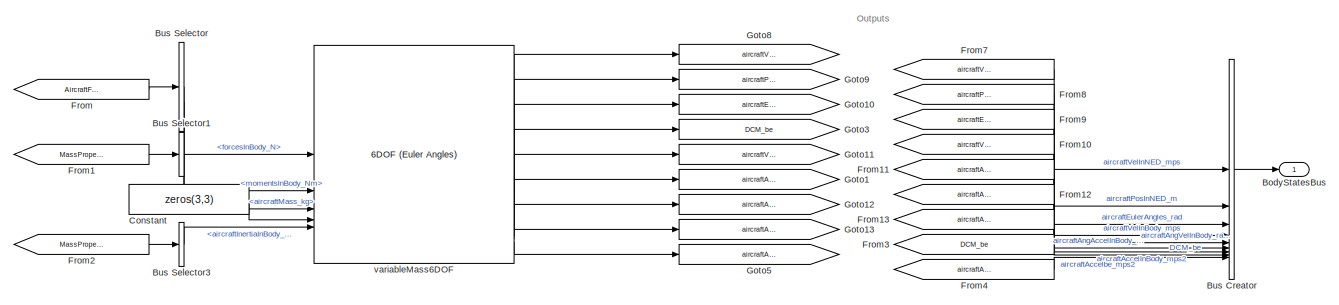
[diagram: root canvas - part 1/2, most of the canvas]
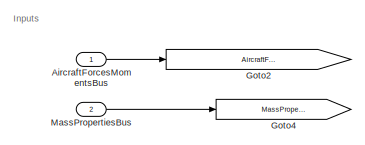
[diagram: root canvas - part 2/2, middle left region]
MODEL slx_60d40bf26ebe
KIND model
BLOCK [Inport] AircraftForcesMomentsBus
  OutDataTypeStr = Bus: AircraftForcesMomentsBus
BLOCK [Outport] BodyStatesBus
  OutDataTypeStr = Bus: BodyStateBus
BLOCK [BusCreator] Bus Creator
  DisplayOption = bar
  InheritFromInputs = on
  Inputs = 9
BLOCK [BusSelector] Bus Selector
  OutputSignals = forcesInBody_N,momentsInBody_Nm
BLOCK [BusSelector] Bus Selector1
  OutputSignals = aircraftMass_kg
BLOCK [BusSelector] Bus Selector3
  OutputSignals = aircraftInertiaInBody_kgm2
BLOCK [Constant] Constant
  Value = zeros(3,3)
BLOCK [From] From
  GotoTag = AircraftForcesMomentsBus
BLOCK [From] From1
  GotoTag = MassPropertiesBus
BLOCK [From] From10
  GotoTag = aircraftVelInBody_mps
BLOCK [From] From11
  GotoTag = aircraftAngVelInBody_radps
BLOCK [From] From12
  GotoTag = aircraftAngAccelInBody_radps2
BLOCK [From] From13
  GotoTag = aircraftAccelInBody_mps2
BLOCK [From] From2
  GotoTag = MassPropertiesBus
BLOCK [From] From3
  GotoTag = DCM_be
BLOCK [From] From4
  GotoTag = aircraftAccelbe_mps2
BLOCK [From] From7
  GotoTag = aircraftVelInNED_mps
BLOCK [From] From8
  GotoTag = aircraftPosInNED_m
BLOCK [From] From9
  GotoTag = aircraftEulerAngles_rad
BLOCK [Goto] Goto1
  GotoTag = aircraftAngVelInBody_radps
BLOCK [Goto] Goto10
  GotoTag = aircraftEulerAngles_rad
BLOCK [Goto] Goto11
  GotoTag = aircraftVelInBody_mps
BLOCK [Goto] Goto12
  GotoTag = aircraftAngAccelInBody_radps2
BLOCK [Goto] Goto13
  GotoTag = aircraftAccelInBody_mps2
BLOCK [Goto] Goto2
  GotoTag = AircraftForcesMomentsBus
BLOCK [Goto] Goto3
  GotoTag = DCM_be
BLOCK [Goto] Goto4
  GotoTag = MassPropertiesBus
BLOCK [Goto] Goto5
  GotoTag = aircraftAccelbe_mps2
BLOCK [Goto] Goto8
  GotoTag = aircraftVelInNED_mps
BLOCK [Goto] Goto9
  GotoTag = aircraftPosInNED_m
BLOCK [Inport] MassPropertiesBus
  OutDataTypeStr = Bus: MassPropertiesBus
  Port = 2
BLOCK [Reference] variableMass6DOF  REF=shared6dof/6DOF (Euler Angles)
  SourceBlock = shared6dof/6DOF (Euler Angles)
  SourceType = 6DOF EoM (Body Axis)
ANNOTATION (root): Inputs
ANNOTATION (root): Outputs
LINE AircraftForcesMomentsBus:1 -> Goto2:1
LINE Bus Creator:1 -> BodyStatesBus:1
LINE Bus Selector1:1 -> variableMass6DOF:3
LINE Bus Selector3:1 -> variableMass6DOF:5
LINE Bus Selector:1 -> variableMass6DOF:1
LINE Bus Selector:2 -> variableMass6DOF:2
LINE Constant:1 -> variableMass6DOF:4
LINE From10:1 -> Bus Creator:4
LINE From11:1 -> Bus Creator:5
LINE From12:1 -> Bus Creator:6
LINE From13:1 -> Bus Creator:7
LINE From1:1 -> Bus Selector1:1
LINE From2:1 -> Bus Selector3:1
LINE From3:1 -> Bus Creator:8
LINE From4:1 -> Bus Creator:9
LINE From7:1 -> Bus Creator:1
LINE From8:1 -> Bus Creator:2
LINE From9:1 -> Bus Creator:3
LINE From:1 -> Bus Selector:1
LINE MassPropertiesBus:1 -> Goto4:1
LINE variableMass6DOF:1 -> Goto8:1
LINE variableMass6DOF:2 -> Goto9:1
LINE variableMass6DOF:3 -> Goto10:1
LINE variableMass6DOF:4 -> Goto3:1
LINE variableMass6DOF:5 -> Goto11:1
LINE variableMass6DOF:6 -> Goto1:1
LINE variableMass6DOF:7 -> Goto12:1
LINE variableMass6DOF:8 -> Goto13:1
LINE variableMass6DOF:9 -> Goto5:1
